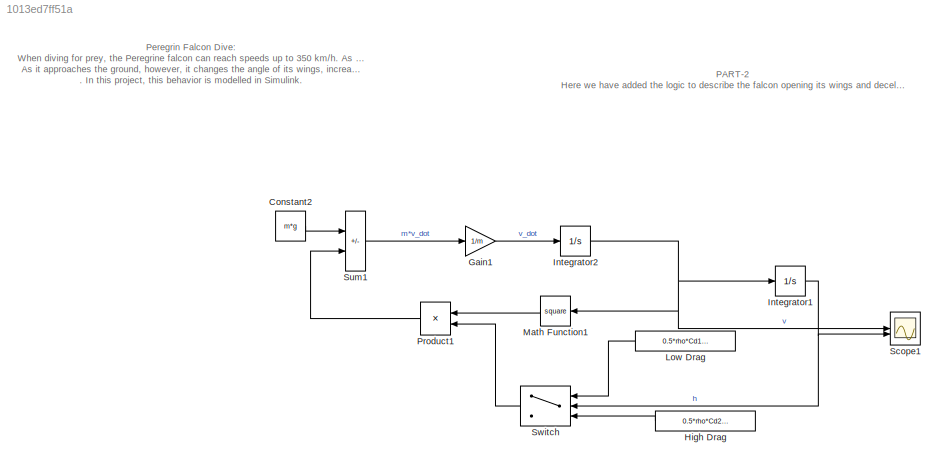
MODEL slx_1013ed7ff51a
KIND model
CONFIG AbsTol = auto
CONFIG EnableMultiTasking = off
CONFIG FixedStep = auto
CONFIG MaxStep = auto
CONFIG MinStep = auto
CONFIG RelTol = 1e-3
CONFIG SampleTimeConstraint = Unconstrained
CONFIG SolverName = VariableStepAuto
CONFIG StartTime = 0.0
CONFIG StopTime = 10.0
BLOCK [Constant] Constant2
  Value = m*g
BLOCK [Gain] Gain1
  Gain = 1/m
BLOCK [Constant] High Drag
  Value = 0.5*rho*Cd2*A2
BLOCK [Integrator] Integrator1
  InitialCondition = 60
BLOCK [Integrator] Integrator2
  InitialCondition = -10
BLOCK [Constant] Low Drag
  Value = 0.5*rho*Cd1*A1
BLOCK [Math] Math Function1
  Operator = square
  SignedPower = on
BLOCK [Product] Product1
BLOCK [Scope] Scope1
  Floating = off
  NumInputPorts = 2
  ScopeSpecificationString = Simulink.scopes.TimeScopeBlockCfg('CurrentConfiguration', extmgr.ConfigurationSet(extmgr.Configuration('Core','General UI',true),extmgr.Configuration('Core','Source UI',true),extmgr.Configuration('Sources','WiredSimulink',true,'DataLoggingVariableName','ScopeData1'),extmgr.Configuration('Visuals','Time Domain',true,'SerializedDisplays',{struct('MinYLimReal','-33.86054','MaxYLimReal','-7.34883','YL...<+2015ch>
BLOCK [Sum] Sum1
  IconShape = rectangular
  Inputs = -+
BLOCK [Switch] Switch
  InputSameDT = off
  SaturateOnIntegerOverflow = off
  Threshold = 15
ANNOTATION (root): PART-2 Here we have added the logic to describe the falcon opening its wings and decelerating .
ANNOTATION (root): Peregrin Falcon Dive: When diving for prey, the Peregrine falcon can reach speeds up to 350 km/h. As the falcon dives, the two forces acting on it are gravity and air drag. The equation of motion for this is: mv=12ρCdAv2−mg As it approaches the ground, however, it changes the angle of its wings, increasing drag, to rapidly decelerate to a safe landing speed. This can be modeled by a change in the ...<+92ch>
LINE Constant2:1 -> Sum1:1
LINE Gain1:1 -> Integrator2:1
LINE High Drag:1 -> Switch:3
NET Integrator1:1 -> Scope1:2, Switch:2
NET Integrator2:1 -> Integrator1:1, Math Function1:1, Scope1:1
LINE Low Drag:1 -> Switch:1
LINE Math Function1:1 -> Product1:1
LINE Product1:1 -> Sum1:2
LINE Sum1:1 -> Gain1:1
LINE Switch:1 -> Product1:2
note: NET lines group one-source signal fan-out (src -> all destinations, sorted); 1:1 wires keep LINE
